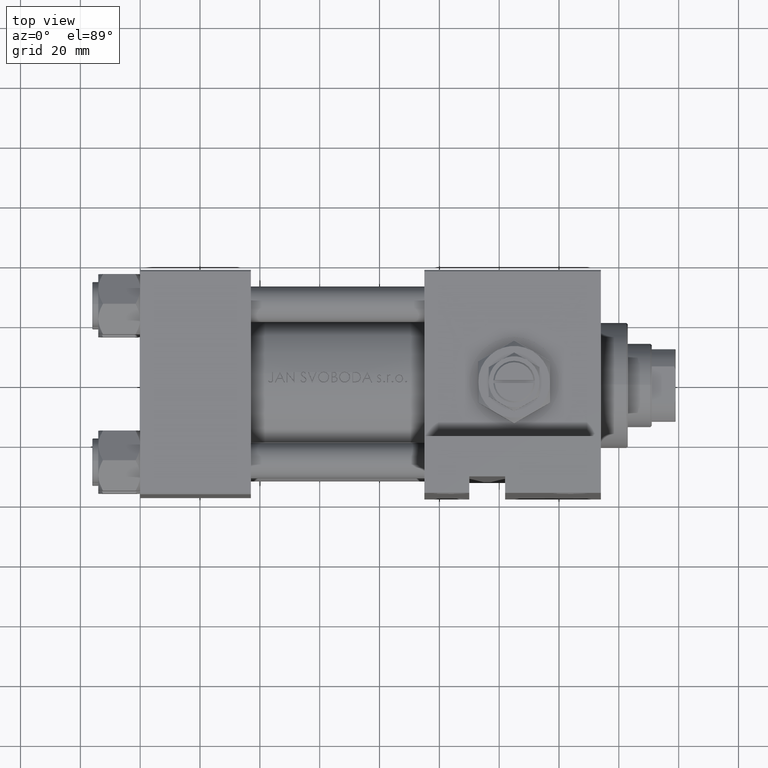
[diagram: clean part render]
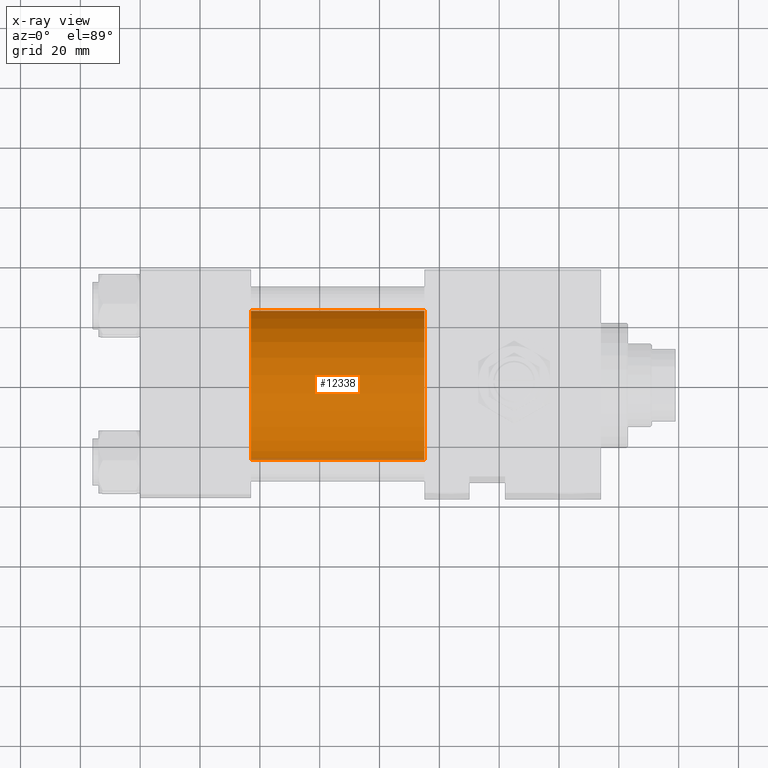
[diagram: x-ray — body ghosted, one internal face saturated and labeled with its STEP entity id]
A machine part, top view, then the same camera in x-ray: the body is ghosted and one INTERNAL B-rep face — a face not visible from any outside direction — is saturated and labeled: STEP entity #12338.
In plain terms, the highlighted cylindrical surface (partial cylindrical patch) has radius 25 mm, axis along (-1, -0, 0).
Its self-contained STEP definition (entity closure, byte-faithful):
#3 = VERTEX_POINT ( 'NONE', #2835 ) ;
#130 = CARTESIAN_POINT ( 'NONE',  ( 95.00000000000000000, 6.123233995736772199E-17, 24.50000000000000000 ) ) ;
#741 = AXIS2_PLACEMENT_3D ( 'NONE', #37424, #45921, #22407 ) ;
#2835 = CARTESIAN_POINT ( 'NONE',  ( 95.00000000000000000, 6.123233995736772199E-17, 24.50000000000000000 ) ) ;
#3562 = VERTEX_POINT ( 'NONE', #10408 ) ;
#3674 = EDGE_CURVE ( 'NONE', #3, #22328, #27585, .T. ) ;
#3965 = ORIENTED_EDGE ( 'NONE', *, *, #7364, .F. ) ;
#7061 = VECTOR ( 'NONE', #31701, 1000.000000000000000 ) ;
#7134 = ORIENTED_EDGE ( 'NONE', *, *, #37965, .T. ) ;
#7364 = EDGE_CURVE ( 'NONE', #22328, #14899, #18108, .T. ) ;
#7743 = AXIS2_PLACEMENT_3D ( 'NONE', #12880, #9382, #9876 ) ;
#9382 = DIRECTION ( 'NONE',  ( 1.000000000000000000, 0.000000000000000000, 0.000000000000000000 ) ) ;
#9876 = DIRECTION ( 'NONE',  ( 0.000000000000000000, 0.000000000000000000, -1.000000000000000000 ) ) ;
#10408 = CARTESIAN_POINT ( 'NONE',  ( 95.00000000000000000, 3.122849337825749828E-15, -25.50000000000000355 ) ) ;
#10693 = FACE_OUTER_BOUND ( 'NONE', #40778, .T. ) ;
#12338 = ADVANCED_FACE ( 'NONE', ( #10693 ), #22153, .F. ) ;
#12880 = CARTESIAN_POINT ( 'NONE',  ( 37.00000000000000000, 6.123233995736772199E-17, -0.5000000000000004441 ) ) ;
#14899 = VERTEX_POINT ( 'NONE', #21875 ) ;
#15590 = CIRCLE ( 'NONE', #27555, 25.00000000000000000 ) ;
#16353 = DIRECTION ( 'NONE',  ( -1.000000000000000000, -0.000000000000000000, -0.000000000000000000 ) ) ;
#18108 = CIRCLE ( 'NONE', #7743, 25.00000000000000000 ) ;
#21482 = CARTESIAN_POINT ( 'NONE',  ( 37.00000000000000000, 6.123233995736772199E-17, 24.50000000000000000 ) ) ;
#21875 = CARTESIAN_POINT ( 'NONE',  ( 37.00000000000000000, 3.122849337825749828E-15, -25.50000000000000355 ) ) ;
#22153 = CYLINDRICAL_SURFACE ( 'NONE', #741, 25.00000000000000000 ) ;
#22328 = VERTEX_POINT ( 'NONE', #21482 ) ;
#22407 = DIRECTION ( 'NONE',  ( 0.000000000000000000, 0.000000000000000000, 1.000000000000000000 ) ) ;
#23375 = ORIENTED_EDGE ( 'NONE', *, *, #3674, .F. ) ;
#27555 = AXIS2_PLACEMENT_3D ( 'NONE', #37524, #41282, #33777 ) ;
#27585 = LINE ( 'NONE', #130, #31375 ) ;
#31375 = VECTOR ( 'NONE', #16353, 1000.000000000000000 ) ;
#31455 = LINE ( 'NONE', #46729, #7061 ) ;
#31701 = DIRECTION ( 'NONE',  ( -1.000000000000000000, -0.000000000000000000, -0.000000000000000000 ) ) ;
#33777 = DIRECTION ( 'NONE',  ( 0.000000000000000000, 0.000000000000000000, -1.000000000000000000 ) ) ;
#37424 = CARTESIAN_POINT ( 'NONE',  ( 95.00000000000000000, 6.123233995736772199E-17, -0.5000000000000004441 ) ) ;
#37524 = CARTESIAN_POINT ( 'NONE',  ( 95.00000000000000000, 6.123233995736772199E-17, -0.5000000000000004441 ) ) ;
#37965 = EDGE_CURVE ( 'NONE', #3, #3562, #15590, .T. ) ;
#40778 = EDGE_LOOP ( 'NONE', ( #7134, #48598, #3965, #23375 ) ) ;
#41282 = DIRECTION ( 'NONE',  ( 1.000000000000000000, 0.000000000000000000, 0.000000000000000000 ) ) ;
#45921 = DIRECTION ( 'NONE',  ( -1.000000000000000000, -0.000000000000000000, -0.000000000000000000 ) ) ;
#46729 = CARTESIAN_POINT ( 'NONE',  ( 95.00000000000000000, 3.122849337825749828E-15, -25.50000000000000355 ) ) ;
#48384 = EDGE_CURVE ( 'NONE', #3562, #14899, #31455, .T. ) ;
#48598 = ORIENTED_EDGE ( 'NONE', *, *, #48384, .T. ) ;